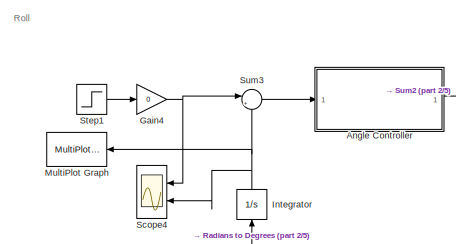
[diagram: root canvas - part 1/5, top left region]
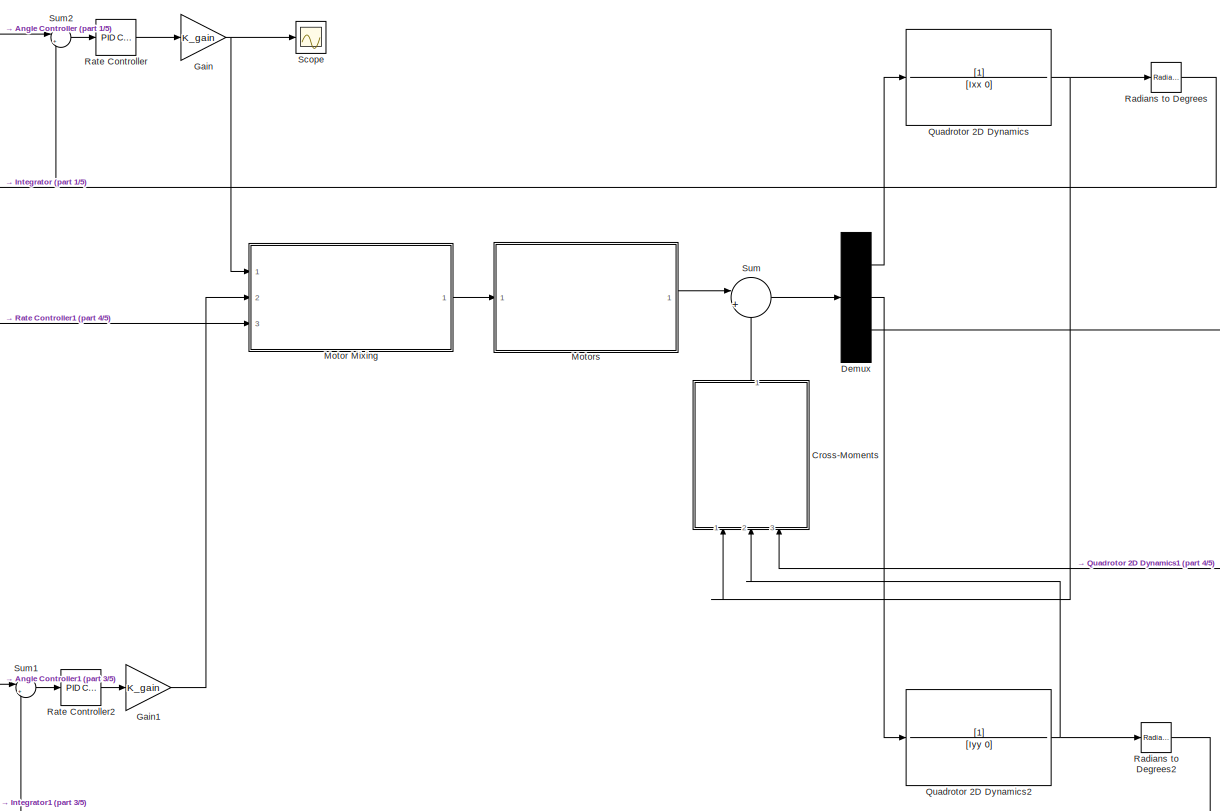
[diagram: root canvas - part 2/5, middle right region]
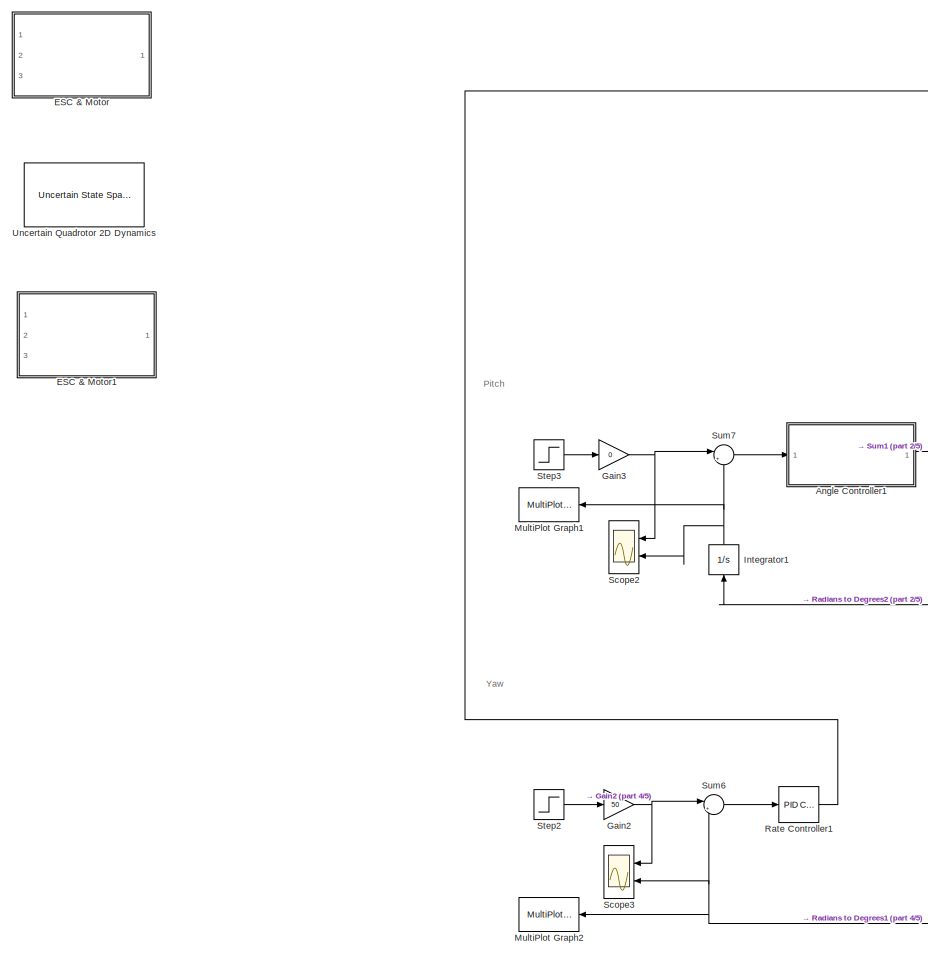
[diagram: root canvas - part 3/5, left side, full height]
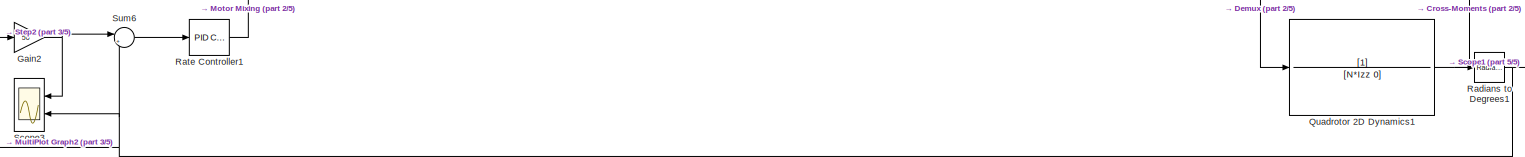
[diagram: root canvas - part 4/5, bottom center region]
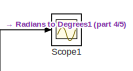
[diagram: root canvas - part 5/5, bottom right region]
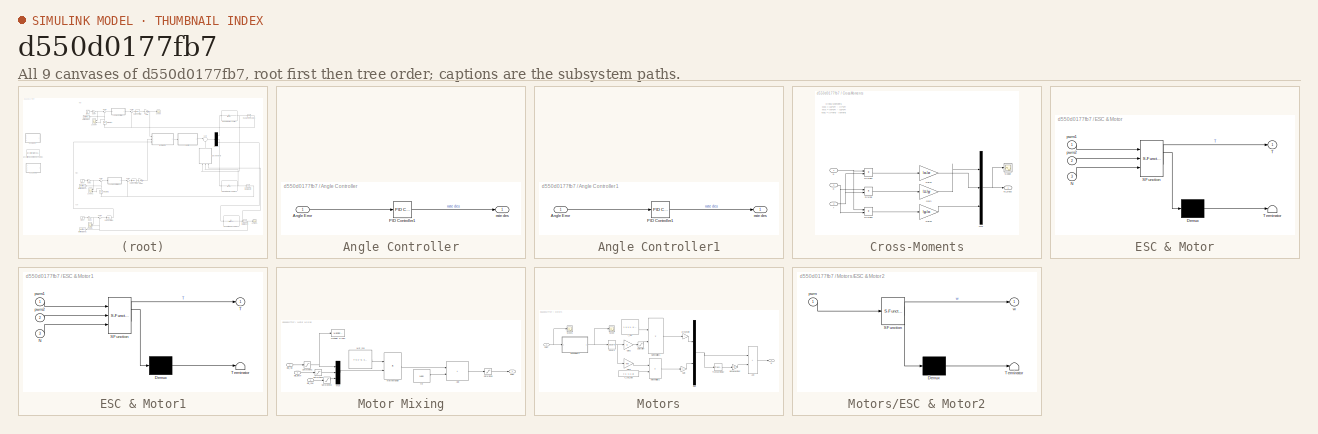
[diagram: thumbnail index - all 9 canvases of the model, root first then tree order]
MODEL slx_d550d0177fb7
KIND model
CONFIG AbsTol = auto
CONFIG EnableMultiTasking = off
CONFIG FixedStep = 0.005
CONFIG InitFcn = max_thrust = 940/1000 * 10;\nmax_rpm = 13610;\nk = max_thrust / (max_rpm^2);\nkm = -3.9128e-08;\nl = 0.3;\nIzz = 0.026;
CONFIG MaxStep = auto
CONFIG MinStep = auto
CONFIG RelTol = 1e-3
CONFIG SampleTimeConstraint = Unconstrained
CONFIG SolverName = FixedStepAuto
CONFIG StartTime = 0.0
CONFIG StopTime = 5
BLOCK [SubSystem] Angle Controller
  Ports = [1, 1]
  RequestExecContextInheritance = off
BLOCK [Inport] Angle Controller/Angle Error
BLOCK [Reference] Angle Controller/PID Controller1  REF=slpidlib/PID Controller
  Ports = [1, 1]
  SourceBlock = slpidlib/PID Controller
  SourceProductBaseCode = SL
  SourceType = PID 1dof
BLOCK [Outport] Angle Controller/rate des
BLOCK [SubSystem] Angle Controller1
  Ports = [1, 1]
  RequestExecContextInheritance = off
BLOCK [Inport] Angle Controller1/Angle Error
BLOCK [Reference] Angle Controller1/PID Controller1  REF=slpidlib/PID Controller
  Ports = [1, 1]
  SourceBlock = slpidlib/PID Controller
  SourceProductBaseCode = SL
  SourceType = PID 1dof
BLOCK [Outport] Angle Controller1/rate des
BLOCK [SubSystem] Cross-Moments
  NameLocation = left
  Ports = [3, 1]
  RequestExecContextInheritance = off
BLOCK [Product] Cross-Moments/Divide
  Inputs = **
  Ports = [2, 1]
BLOCK [Product] Cross-Moments/Divide1
  Inputs = **
  Ports = [2, 1]
BLOCK [Product] Cross-Moments/Divide2
  Inputs = **
  Ports = [2, 1]
BLOCK [Gain] Cross-Moments/Gain
  Gain = Izz-Iyy
BLOCK [Gain] Cross-Moments/Gain1
  Gain = Ixx-Izz
BLOCK [Gain] Cross-Moments/Gain2
  Gain = Iyy-Ixx
BLOCK [Outport] Cross-Moments/M_cross
BLOCK [Mux] Cross-Moments/Mux
  DisplayOption = bar
  Inputs = 3
  Ports = [3, 1]
BLOCK [Scope] Cross-Moments/Scope
  Floating = off
  NumInputPorts = 1
  Ports = [1]
  ScopeSpecificationString = Simulink.scopes.TimeScopeBlockCfg('CurrentConfiguration', extmgr.ConfigurationSet(extmgr.Configuration('Core','General UI',true),extmgr.Configuration('Core','Source UI',true),extmgr.Configuration('Sources','WiredSimulink',true,'DataLoggingVariableName','ScopeData5'),extmgr.Configuration('Visuals','Time Domain',true,'SerializedDisplays',{struct('MinYLimReal','-1.00000','MaxYLimReal','1.00000','YLab...<+1379ch>
BLOCK [Inport] Cross-Moments/p
BLOCK [Inport] Cross-Moments/q
  Port = 2
BLOCK [Inport] Cross-Moments/r
  Port = 3
BLOCK [Demux] Demux
  Outputs = 3
  Ports = [1, 3]
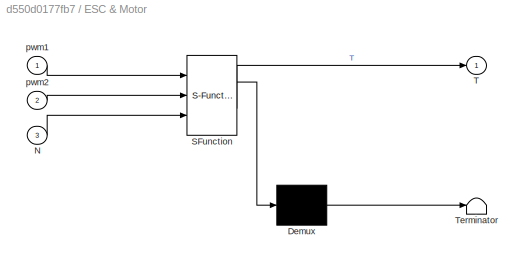
BLOCK [SubSystem] ESC & Motor
  Commented = on
  ErrorFcn = Stateflow.Translate.translate
  PermitHierarchicalResolution = ExplicitOnly
  Ports = [3, 1]
  RequestExecContextInheritance = off
  SFBlockType = MATLAB Function
  TreatAsAtomicUnit = on
BLOCK [Demux] ESC & Motor/ Demux 
  Outputs = 1
  Ports = [1, 1]
BLOCK [S-Function] ESC & Motor/ SFunction 
  EnableBusSupport = on
  FunctionName = sf_sfun
  PortCounts = [3 2]
  Ports = [3, 2]
  SFcnIsStateOwnerBlock = off
  SFunctionDeploymentMode = off
  Tag = Stateflow S-Function 2
BLOCK [Terminator] ESC & Motor/ Terminator 
BLOCK [Inport] ESC & Motor/N
  Port = 3
BLOCK [Outport] ESC & Motor/T
BLOCK [Inport] ESC & Motor/pwm1
BLOCK [Inport] ESC & Motor/pwm2
  Port = 2
BLOCK [SubSystem] ESC & Motor1
  Commented = on
  ErrorFcn = Stateflow.Translate.translate
  PermitHierarchicalResolution = ExplicitOnly
  Ports = [3, 1]
  RequestExecContextInheritance = off
  SFBlockType = MATLAB Function
  TreatAsAtomicUnit = on
BLOCK [Demux] ESC & Motor1/ Demux 
  Outputs = 1
  Ports = [1, 1]
BLOCK [S-Function] ESC & Motor1/ SFunction 
  EnableBusSupport = on
  FunctionName = sf_sfun
  PortCounts = [3 2]
  Ports = [3, 2]
  SFcnIsStateOwnerBlock = off
  SFunctionDeploymentMode = off
  Tag = Stateflow S-Function 1
BLOCK [Terminator] ESC & Motor1/ Terminator 
BLOCK [Inport] ESC & Motor1/N
  Port = 3
BLOCK [Outport] ESC & Motor1/T
BLOCK [Inport] ESC & Motor1/pwm1
BLOCK [Inport] ESC & Motor1/pwm2
  Port = 2
BLOCK [Gain] Gain
  Gain = K_gain
BLOCK [Gain] Gain1
  Gain = K_gain
BLOCK [Gain] Gain2
  Gain = 50
BLOCK [Gain] Gain3
  Gain = 0
BLOCK [Gain] Gain4
  Gain = 0
BLOCK [Integrator] Integrator
  NameLocation = right
  Ports = [1, 1]
BLOCK [Integrator] Integrator1
  NameLocation = right
  Ports = [1, 1]
BLOCK [SubSystem] Motor Mixing
  Ports = [3, 1]
  RequestExecContextInheritance = off
BLOCK [Sum] Motor Mixing/Add
  IconShape = rectangular
  Ports = [2, 1]
BLOCK [Product] Motor Mixing/MatrixMultiply
  Multiplication = Matrix(*)
  Ports = [2, 1]
BLOCK [Constant] Motor Mixing/Mot_mix
  Value = [-1 1 -1; 1 -1 -1; 1 1 1; -1 -1 1]
BLOCK [Reference] Motor Mixing/MultiPlot Graph  REF=RCTblocks/MultiPlot Graph
  Ports = [1]
  SourceBlock = RCTblocks/MultiPlot Graph
  SourceProductBaseCode = RC
  SourceType = MultiPlot Graph
  Tag = MultiPlot
BLOCK [Mux] Motor Mixing/Mux
  DisplayOption = bar
  Inputs = 3
  Ports = [3, 1]
BLOCK [Saturate] Motor Mixing/Saturation
  LowerLimit = 1100
  UpperLimit = 2000
BLOCK [Saturate] Motor Mixing/Saturation1
  LowerLimit = -300
  UpperLimit = 300
BLOCK [Saturate] Motor Mixing/Saturation2
  LowerLimit = -300
  UpperLimit = 300
BLOCK [Saturate] Motor Mixing/Saturation3
  LowerLimit = -300
  UpperLimit = 300
BLOCK [Inport] Motor Mixing/pid_pitch
  Port = 2
BLOCK [Inport] Motor Mixing/pid_roll
BLOCK [Inport] Motor Mixing/pid_yaw
  Port = 3
BLOCK [Outport] Motor Mixing/pwm
BLOCK [Constant] Motor Mixing/thr
  Value = 1400
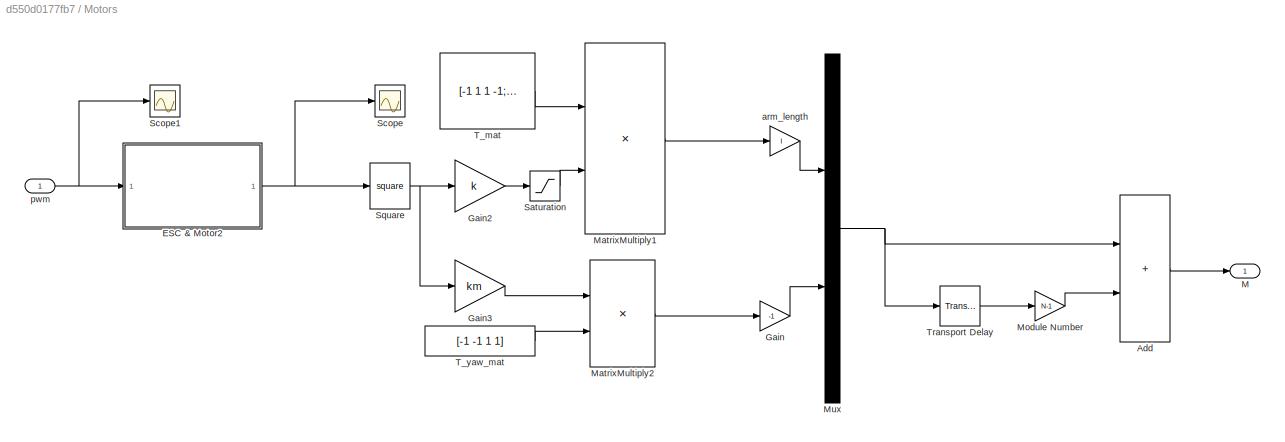
BLOCK [SubSystem] Motors
  Ports = [1, 1]
  RequestExecContextInheritance = off
BLOCK [Sum] Motors/Add
  IconShape = rectangular
  Ports = [2, 1]
BLOCK [SubSystem] Motors/ESC & Motor2
  ErrorFcn = Stateflow.Translate.translate
  PermitHierarchicalResolution = ExplicitOnly
  Ports = [1, 1]
  RequestExecContextInheritance = off
  SFBlockType = MATLAB Function
  TreatAsAtomicUnit = on
BLOCK [Demux] Motors/ESC & Motor2/ Demux 
  Outputs = 1
  Ports = [1, 1]
BLOCK [S-Function] Motors/ESC & Motor2/ SFunction 
  EnableBusSupport = on
  FunctionName = sf_sfun
  PortCounts = [1 2]
  Ports = [1, 2]
  SFcnIsStateOwnerBlock = off
  SFunctionDeploymentMode = off
  Tag = Stateflow S-Function 3
BLOCK [Terminator] Motors/ESC & Motor2/ Terminator 
BLOCK [Inport] Motors/ESC & Motor2/pwm
BLOCK [Outport] Motors/ESC & Motor2/w
BLOCK [Gain] Motors/Gain
  Gain = -1
BLOCK [Gain] Motors/Gain2
  Gain = k
BLOCK [Gain] Motors/Gain3
  Gain = km
BLOCK [Outport] Motors/M
BLOCK [Product] Motors/MatrixMultiply1
  Multiplication = Matrix(*)
  Ports = [2, 1]
BLOCK [Product] Motors/MatrixMultiply2
  Multiplication = Matrix(*)
  Ports = [2, 1]
BLOCK [Gain] Motors/Module Number
  Gain = N-1
BLOCK [Mux] Motors/Mux
  DisplayOption = bar
  Inputs = 2
  Ports = [2, 1]
BLOCK [Saturate] Motors/Saturation
  LowerLimit = 0
  UpperLimit = 10
BLOCK [Scope] Motors/Scope
  Floating = off
  NumInputPorts = 1
  Ports = [1]
  ScopeSpecificationString = Simulink.scopes.TimeScopeBlockCfg('CurrentConfiguration', extmgr.ConfigurationSet(extmgr.Configuration('Core','General UI',true),extmgr.Configuration('Core','Source UI',true),extmgr.Configuration('Sources','WiredSimulink',true,'DataLoggingVariableName','ScopeData2'),extmgr.Configuration('Visuals','Time Domain',true,'SerializedDisplays',{struct('MinYLimReal','1190.875','MaxYLimReal','9697.125','YLa...<+1430ch>
BLOCK [Scope] Motors/Scope1
  Floating = off
  NumInputPorts = 1
  Ports = [1]
  ScopeSpecificationString = Simulink.scopes.TimeScopeBlockCfg('CurrentConfiguration', extmgr.ConfigurationSet(extmgr.Configuration('Core','General UI',true),extmgr.Configuration('Core','Source UI',true),extmgr.Configuration('Sources','WiredSimulink',true,'DataLoggingVariableName','ScopeData3'),extmgr.Configuration('Visuals','Time Domain',true,'SerializedDisplays',{struct('MinYLimReal','1087.5','MaxYLimReal','1712.5','YLabelR...<+1378ch>
BLOCK [Math] Motors/Square
  Operator = square
  Ports = [1, 1]
BLOCK [Constant] Motors/T_mat
  Value = [-1 1 1 -1; 1 -1 1 -1]
BLOCK [Constant] Motors/T_yaw_mat
  Value = [-1 -1 1 1]
BLOCK [TransportDelay] Motors/Transport Delay
  PadeOrder = 2
  Ports = [1, 1]
BLOCK [Gain] Motors/arm_length
  Gain = l
BLOCK [Inport] Motors/pwm
BLOCK [Reference] MultiPlot Graph  REF=RCTblocks/MultiPlot Graph
  Ports = [1]
  SourceBlock = RCTblocks/MultiPlot Graph
  SourceProductBaseCode = RC
  SourceType = MultiPlot Graph
  Tag = MultiPlot
BLOCK [Reference] MultiPlot Graph1  REF=RCTblocks/MultiPlot Graph
  Ports = [1]
  SourceBlock = RCTblocks/MultiPlot Graph
  SourceProductBaseCode = RC
  SourceType = MultiPlot Graph
  Tag = MultiPlot
BLOCK [Reference] MultiPlot Graph2  REF=RCTblocks/MultiPlot Graph
  Ports = [1]
  SourceBlock = RCTblocks/MultiPlot Graph
  SourceProductBaseCode = RC
  SourceType = MultiPlot Graph
  Tag = MultiPlot
BLOCK [TransferFcn] Quadrotor 2D Dynamics
  Denominator = [Ixx 0]
BLOCK [TransferFcn] Quadrotor 2D Dynamics1
  Denominator = [N*Izz 0]
BLOCK [TransferFcn] Quadrotor 2D Dynamics2
  Denominator = [Iyy 0]
BLOCK [Reference] Radians to Degrees  REF=simulink_extras/Transformations/Radians
to Degrees
  Ports = [1, 1]
  SourceBlock = simulink_extras/Transformations/Radians\nto Degrees
  SourceProductBaseCode = SL
  SourceType = RadiansToDegrees
BLOCK [Reference] Radians to Degrees1  REF=simulink_extras/Transformations/Radians
to Degrees
  Ports = [1, 1]
  SourceBlock = simulink_extras/Transformations/Radians\nto Degrees
  SourceProductBaseCode = SL
  SourceType = RadiansToDegrees
BLOCK [Reference] Radians to Degrees2  REF=simulink_extras/Transformations/Radians
to Degrees
  Ports = [1, 1]
  SourceBlock = simulink_extras/Transformations/Radians\nto Degrees
  SourceProductBaseCode = SL
  SourceType = RadiansToDegrees
BLOCK [Reference] Rate Controller  REF=slpidlib/PID Controller
  Ports = [1, 1]
  SourceBlock = slpidlib/PID Controller
  SourceProductBaseCode = SL
  SourceType = PID 1dof
BLOCK [Reference] Rate Controller1  REF=slpidlib/PID Controller
  Ports = [1, 1]
  SourceBlock = slpidlib/PID Controller
  SourceProductBaseCode = SL
  SourceType = PID 1dof
BLOCK [Reference] Rate Controller2  REF=slpidlib/PID Controller
  Ports = [1, 1]
  SourceBlock = slpidlib/PID Controller
  SourceProductBaseCode = SL
  SourceType = PID 1dof
BLOCK [Scope] Scope
  Floating = off
  NumInputPorts = 1
  Ports = [1]
  ScopeSpecificationString = Simulink.scopes.TimeScopeBlockCfg('CurrentConfiguration', extmgr.ConfigurationSet(extmgr.Configuration('Core','General UI',true),extmgr.Configuration('Core','Source UI',true),extmgr.Configuration('Sources','WiredSimulink',true,'DataLoggingVariableName','ScopeData4'),extmgr.Configuration('Visuals','Time Domain',true,'SerializedDisplays',{struct('MinYLimReal','-1.00000','MaxYLimReal','1.00000','YLab...<+1363ch>
BLOCK [Scope] Scope1
  Floating = off
  NumInputPorts = 1
  Ports = [1]
  ScopeSpecificationString = Simulink.scopes.TimeScopeBlockCfg('CurrentConfiguration', extmgr.ConfigurationSet(extmgr.Configuration('Core','General UI',true,'FigureColor',[1 1 1]),extmgr.Configuration('Core','Source UI',true),extmgr.Configuration('Sources','WiredSimulink',true,'DataLoggingVariableName','ScopeData1'),extmgr.Configuration('Visuals','Time Domain',true,'SerializedDisplays',{struct('MinYLimReal','-6.25','MaxYLimRe...<+1526ch>
BLOCK [Scope] Scope2
  Floating = off
  NumInputPorts = 2
  Ports = [2]
  ScopeSpecificationString = Simulink.scopes.TimeScopeBlockCfg('CurrentConfiguration', extmgr.ConfigurationSet(extmgr.Configuration('Core','General UI',true),extmgr.Configuration('Core','Source UI',true),extmgr.Configuration('Sources','WiredSimulink',true,'DataLoggingVariableName','ScopeData1'),extmgr.Configuration('Visuals','Time Domain',true,'SerializedDisplays',{struct('MinYLimReal','-1.00000','MaxYLimReal','1.00000','YLab...<+1411ch>
BLOCK [Scope] Scope3
  Floating = off
  NumInputPorts = 2
  Ports = [2]
  ScopeSpecificationString = Simulink.scopes.TimeScopeBlockCfg('CurrentConfiguration', extmgr.ConfigurationSet(extmgr.Configuration('Core','General UI',true),extmgr.Configuration('Core','Source UI',true),extmgr.Configuration('Sources','WiredSimulink',true,'DataLoggingVariableName','ScopeData1'),extmgr.Configuration('Visuals','Time Domain',true,'SerializedDisplays',{struct('MinYLimReal','49.99999931','MaxYLimReal','50.00000008...<+1468ch>
BLOCK [Scope] Scope4
  Floating = off
  NumInputPorts = 2
  Ports = [2]
  ScopeSpecificationString = Simulink.scopes.TimeScopeBlockCfg('CurrentConfiguration', extmgr.ConfigurationSet(extmgr.Configuration('Core','General UI',true),extmgr.Configuration('Core','Source UI',true),extmgr.Configuration('Sources','WiredSimulink',true,'DataLoggingVariableName','ScopeData2'),extmgr.Configuration('Visuals','Time Domain',true,'SerializedDisplays',{struct('MinYLimReal','-1.00000','MaxYLimReal','1.00000','YLab...<+1408ch>
BLOCK [Step] Step1
  SampleTime = 0
BLOCK [Step] Step2
  SampleTime = 0
BLOCK [Step] Step3
  SampleTime = 0
BLOCK [Sum] Sum
  Inputs = |+-
  Ports = [2, 1]
BLOCK [Sum] Sum1
  Inputs = |+-
  Ports = [2, 1]
BLOCK [Sum] Sum2
  Inputs = |+-
  Ports = [2, 1]
BLOCK [Sum] Sum3
  Inputs = |+-
  Ports = [2, 1]
BLOCK [Sum] Sum6
  Inputs = |+-
  Ports = [2, 1]
BLOCK [Sum] Sum7
  Inputs = |+-
  Ports = [2, 1]
BLOCK [Reference] Uncertain Quadrotor 2D Dynamics  REF=RCTblocks/Uncertain State Space
  Commented = on
  Ports = [1, 1]
  SourceBlock = RCTblocks/Uncertain State Space
  SourceProductBaseCode = RC
  SourceType = Uncertain State Space Block
  Tag = USS
ANNOTATION (root): Pitch
ANNOTATION (root): Roll
ANNOTATION (root): Yaw
ANNOTATION Cross-Moments: Cross-Moments Mxc = Izz*q*r - Iyy*q*r Myc = Ixx*p*r - Izz*p*r Mzc = Iyy*p*q - Ixx*p*q
LINE Angle Controller/Angle Error:1 -> Angle Controller/PID Controller1:1
LINE Angle Controller/PID Controller1:1 -> Angle Controller/rate des:1
LINE Angle Controller1/Angle Error:1 -> Angle Controller1/PID Controller1:1
LINE Angle Controller1/PID Controller1:1 -> Angle Controller1/rate des:1
LINE Angle Controller1:1 -> Sum1:1
LINE Angle Controller:1 -> Sum2:1
LINE Cross-Moments/Divide1:1 -> Cross-Moments/Gain1:1
LINE Cross-Moments/Divide2:1 -> Cross-Moments/Gain2:1
LINE Cross-Moments/Divide:1 -> Cross-Moments/Gain:1
LINE Cross-Moments/Gain1:1 -> Cross-Moments/Mux:2
LINE Cross-Moments/Gain2:1 -> Cross-Moments/Mux:3
LINE Cross-Moments/Gain:1 -> Cross-Moments/Mux:1
NET Cross-Moments/Mux:1 -> Cross-Moments/M_cross:1, Cross-Moments/Scope:1
NET Cross-Moments/p:1 -> Cross-Moments/Divide1:1, Cross-Moments/Divide2:1
NET Cross-Moments/q:1 -> Cross-Moments/Divide2:2, Cross-Moments/Divide:1
NET Cross-Moments/r:1 -> Cross-Moments/Divide1:2, Cross-Moments/Divide:2
LINE Cross-Moments:1 -> Sum:2
LINE Demux:1 -> Quadrotor 2D Dynamics:1
LINE Demux:2 -> Quadrotor 2D Dynamics2:1
LINE Demux:3 -> Quadrotor 2D Dynamics1:1
LINE Gain1:1 -> Motor Mixing:2
NET Gain2:1 -> Scope3:1, Sum6:1
NET Gain3:1 -> Scope2:1, Sum7:1
NET Gain4:1 -> Scope4:1, Sum3:1
NET Gain:1 -> Motor Mixing:1, Scope:1
NET Integrator1:1 -> MultiPlot Graph1:1, Scope2:2, Sum7:2
NET Integrator:1 -> MultiPlot Graph:1, Scope4:2, Sum3:2
LINE Motor Mixing/Add:1 -> Motor Mixing/Saturation:1
LINE Motor Mixing/MatrixMultiply:1 -> Motor Mixing/Add:1
LINE Motor Mixing/Mot_mix:1 -> Motor Mixing/MatrixMultiply:1
LINE Motor Mixing/Mux:1 -> Motor Mixing/MatrixMultiply:2
NET Motor Mixing/Saturation1:1 -> Motor Mixing/MultiPlot Graph:1, Motor Mixing/Mux:1
LINE Motor Mixing/Saturation2:1 -> Motor Mixing/Mux:2
LINE Motor Mixing/Saturation3:1 -> Motor Mixing/Mux:3
LINE Motor Mixing/Saturation:1 -> Motor Mixing/pwm:1
LINE Motor Mixing/pid_pitch:1 -> Motor Mixing/Saturation2:1
LINE Motor Mixing/pid_roll:1 -> Motor Mixing/Saturation1:1
LINE Motor Mixing/pid_yaw:1 -> Motor Mixing/Saturation3:1
LINE Motor Mixing/thr:1 -> Motor Mixing/Add:2
LINE Motor Mixing:1 -> Motors:1
LINE Motors/Add:1 -> Motors/M:1
NET Motors/ESC & Motor2:1 -> Motors/Scope:1, Motors/Square:1
LINE Motors/Gain2:1 -> Motors/Saturation:1
LINE Motors/Gain3:1 -> Motors/MatrixMultiply2:1
LINE Motors/Gain:1 -> Motors/Mux:2
LINE Motors/MatrixMultiply1:1 -> Motors/arm_length:1
LINE Motors/MatrixMultiply2:1 -> Motors/Gain:1
LINE Motors/Module Number:1 -> Motors/Add:2
NET Motors/Mux:1 -> Motors/Add:1, Motors/Transport Delay:1
LINE Motors/Saturation:1 -> Motors/MatrixMultiply1:2
NET Motors/Square:1 -> Motors/Gain2:1, Motors/Gain3:1
LINE Motors/T_mat:1 -> Motors/MatrixMultiply1:1
LINE Motors/T_yaw_mat:1 -> Motors/MatrixMultiply2:2
LINE Motors/Transport Delay:1 -> Motors/Module Number:1
LINE Motors/arm_length:1 -> Motors/Mux:1
NET Motors/pwm:1 -> Motors/ESC & Motor2:1, Motors/Scope1:1
LINE Motors:1 -> Sum:1
NET Quadrotor 2D Dynamics1:1 -> Cross-Moments:3, Radians to Degrees1:1
NET Quadrotor 2D Dynamics2:1 -> Cross-Moments:2, Radians to Degrees2:1
NET Quadrotor 2D Dynamics:1 -> Cross-Moments:1, Radians to Degrees:1
NET Radians to Degrees1:1 -> MultiPlot Graph2:1, Scope1:1, Scope3:2, Sum6:2
NET Radians to Degrees2:1 -> Integrator1:1, Sum1:2
NET Radians to Degrees:1 -> Integrator:1, Sum2:2
LINE Rate Controller1:1 -> Motor Mixing:3
LINE Rate Controller2:1 -> Gain1:1
LINE Rate Controller:1 -> Gain:1
LINE Step1:1 -> Gain4:1
LINE Step2:1 -> Gain2:1
LINE Step3:1 -> Gain3:1
LINE Sum1:1 -> Rate Controller2:1
LINE Sum2:1 -> Rate Controller:1
LINE Sum3:1 -> Angle Controller:1
LINE Sum6:1 -> Rate Controller1:1
LINE Sum7:1 -> Angle Controller1:1
LINE Sum:1 -> Demux:1
note: NET lines group one-source signal fan-out (src -> all destinations, sorted); 1:1 wires keep LINE
CHART ESC & Motor1 states=1 transitions=1
  STATE_LABEL 'eML_blk_kernel()'
  STATE_LABEL 'SCRIPT:\nfunction T = pwm2T(pwm1,pwm2,N)\nmax_thrust = 940/1000 * 10;\nmax_rpm = 13610;\nk = max_thrust / (max_rpm^2)*0.05;\nl = 0.15;\nw1 = (pwm1 - 1000) * (max_rpm - 0) / (2000 - 1000) + 0;\nw2 = (pwm2 - 1000) * (max_rpm - 0) / (2000 - 1000) + 0;\n\n\nM1 = k*w1^2; M2=k*w2^2;\n\nT = N*2*(M2-M1);\n'
CHART ESC & Motor states=1 transitions=1
  STATE_LABEL 'eML_blk_kernel()'
  STATE_LABEL 'SCRIPT:\nfunction T = pwm2T(pwm1,pwm2,N)\nmax_thrust = 940/1000 * 10;\nmax_rpm = 13610;\nk = max_thrust / (max_rpm^2);\nl = 0.2;\nw1 = (pwm1 - 1000) * (max_rpm - 0) / (2000 - 1000) + 0;\nw2 = (pwm2 - 1000) * (max_rpm - 0) / (2000 - 1000) + 0;\n\n\nF1 = k*w1^2; F2=k*w2^2;\n\nT = N*2*(F2-F1)*l;\n'
CHART Motors/ESC & Motor2 states=1 transitions=1
  STATE_LABEL 'eML_blk_kernel()'
  STATE_LABEL "SCRIPT:\nfunction w = pwm2w(pwm)\nmax_thrust = 940/1000 * 10;\nmax_rpm = 13610;\nk = max_thrust / (max_rpm^2);\nl = 0.3;\nw1 = (pwm(1) - 1000) * (max_rpm - 0) / (2000 - 1000) + 0;\nw2 = (pwm(2) - 1000) * (max_rpm - 0) / (2000 - 1000) + 0;\nw3 = (pwm(3) - 1000) * (max_rpm - 0) / (2000 - 1000) + 0;\nw4 = (pwm(4) - 1000) * (max_rpm - 0) / (2000 - 1000) + 0;\n\nw = [w1 w2 w3 w4]';\n\n%F1 = k*w1^2; F2=k*w2^2;\n%T = ...<+15ch>"
CHART  states=0 transitions=0
CHART  states=0 transitions=0
CHART  states=0 transitions=0
